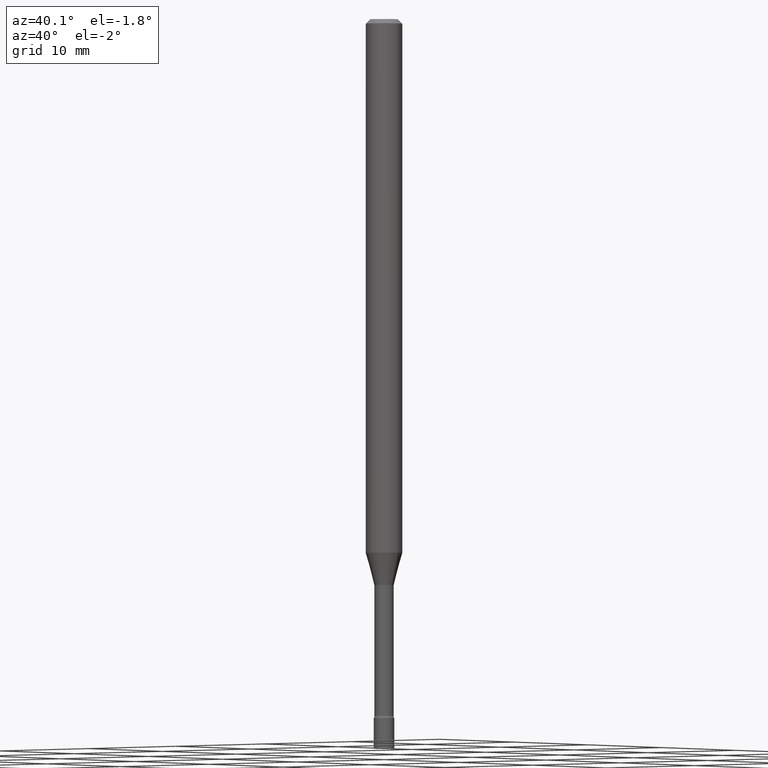
[diagram: clean part render]
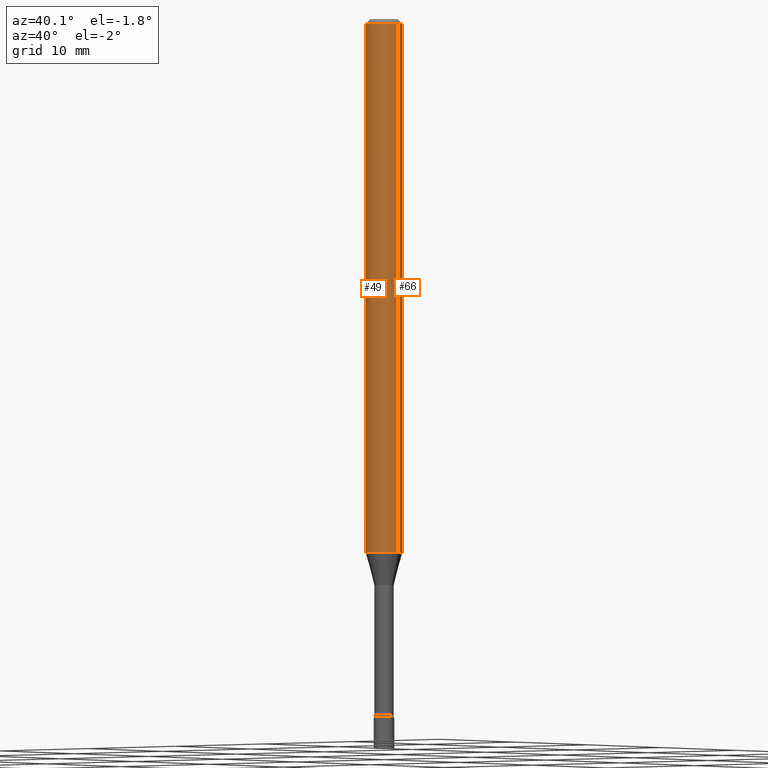
[diagram: same view with one multi-face feature highlighted, each face labeled with its STEP entity id]
A machine part, auxiliary view. The highlighted faces form ONE feature: a constant-radius fillet chain: 2 tangent blend faces with common blend radius 1.5875 mm. The faces share edges in the B-rep.
Their STEP definitions:
[1] entity #66 (Cylinder):
#2 = VERTEX_POINT ( 'NONE', #297 ) ;
#15 = DIRECTION ( 'NONE',  ( -2.445468806185136597E-29, 3.491481338843145583E-15, 1.000000000000000000 ) ) ;
#45 = VECTOR ( 'NONE', #466, 39.37007874015748143 ) ;
#51 = CIRCLE ( 'NONE', #187, 0.06250000000000000000 ) ;
#60 = ORIENTED_EDGE ( 'NONE', *, *, #129, .F. ) ;
#66 = ADVANCED_FACE ( 'NONE', ( #251 ), #401, .T. ) ;
#82 = ORIENTED_EDGE ( 'NONE', *, *, #290, .F. ) ;
#88 = CARTESIAN_POINT ( 'NONE',  ( 0.000000000000000000, 0.000000000000000000, 0.000000000000000000 ) ) ;
#111 = EDGE_CURVE ( 'NONE', #501, #2, #51, .T. ) ;
#116 = EDGE_LOOP ( 'NONE', ( #424, #465, #82, #60 ) ) ;
#129 = EDGE_CURVE ( 'NONE', #501, #245, #300, .T. ) ;
#177 = AXIS2_PLACEMENT_3D ( 'NONE', #314, #433, #235 ) ;
#187 = AXIS2_PLACEMENT_3D ( 'NONE', #411, #430, #191 ) ;
#191 = DIRECTION ( 'NONE',  ( 1.000000000000000000, -6.982962677686262766E-15, 0.000000000000000000 ) ) ;
#219 = VECTOR ( 'NONE', #414, 39.37007874015748143 ) ;
#235 = DIRECTION ( 'NONE',  ( 1.000000000000000000, -6.982962677686266711E-15, 0.000000000000000000 ) ) ;
#245 = VERTEX_POINT ( 'NONE', #393 ) ;
#251 = FACE_OUTER_BOUND ( 'NONE', #116, .T. ) ;
#289 = CARTESIAN_POINT ( 'NONE',  ( -0.06250000000000000000, -2.775984089765543291E-15, -0.01500000000000003067 ) ) ;
#290 = EDGE_CURVE ( 'NONE', #245, #319, #394, .T. ) ;
#297 = CARTESIAN_POINT ( 'NONE',  ( -0.06250000000000000000, -5.943685169298501725E-15, -1.829531296095961546 ) ) ;
#300 = LINE ( 'NONE', #509, #45 ) ;
#305 = CARTESIAN_POINT ( 'NONE',  ( -0.06250000000000000000, 4.440892098500626162E-16, -3.074334431409316114E-30 ) ) ;
#314 = CARTESIAN_POINT ( 'NONE',  ( 3.668203209277712094E-31, -5.237222008264728876E-17, -0.01500000000000003067 ) ) ;
#319 = VERTEX_POINT ( 'NONE', #289 ) ;
#328 = AXIS2_PLACEMENT_3D ( 'NONE', #88, #15, #368 ) ;
#345 = EDGE_CURVE ( 'NONE', #2, #319, #486, .T. ) ;
#368 = DIRECTION ( 'NONE',  ( 1.000000000000000000, -6.982962677686266711E-15, 4.876176775795935793E-29 ) ) ;
#383 = CARTESIAN_POINT ( 'NONE',  ( 0.06250000000000000000, -6.824209546503955222E-15, -1.829531296095961546 ) ) ;
#393 = CARTESIAN_POINT ( 'NONE',  ( 0.06250000000000000000, -4.888073874380389458E-16, -0.01500000000000003067 ) ) ;
#394 = CIRCLE ( 'NONE', #177, 0.06250000000000000000 ) ;
#401 = CYLINDRICAL_SURFACE ( 'NONE', #328, 0.06250000000000000000 ) ;
#411 = CARTESIAN_POINT ( 'NONE',  ( 4.474061714542137038E-29, -6.387774379148563553E-15, -1.829531296095961546 ) ) ;
#414 = DIRECTION ( 'NONE',  ( -2.445468806185136877E-29, 3.491481338843145188E-15, 1.000000000000000000 ) ) ;
#424 = ORIENTED_EDGE ( 'NONE', *, *, #111, .T. ) ;
#430 = DIRECTION ( 'NONE',  ( -2.445468806185136597E-29, 3.491481338843145583E-15, 1.000000000000000000 ) ) ;
#433 = DIRECTION ( 'NONE',  ( -2.445468806185136597E-29, 3.491481338843145583E-15, 1.000000000000000000 ) ) ;
#465 = ORIENTED_EDGE ( 'NONE', *, *, #345, .T. ) ;
#466 = DIRECTION ( 'NONE',  ( -2.445468806185136877E-29, 3.491481338843145188E-15, 1.000000000000000000 ) ) ;
#486 = LINE ( 'NONE', #305, #219 ) ;
#501 = VERTEX_POINT ( 'NONE', #383 ) ;
#509 = CARTESIAN_POINT ( 'NONE',  ( 0.06250000000000000000, -4.364351673553916694E-16, 3.047610484872459871E-30 ) ) ;
[2] entity #49 (Cylinder):
#2 = VERTEX_POINT ( 'NONE', #297 ) ;
#3 = DIRECTION ( 'NONE',  ( -2.445468806185136597E-29, 3.491481338843145583E-15, 1.000000000000000000 ) ) ;
#4 = CIRCLE ( 'NONE', #302, 0.06250000000000000000 ) ;
#42 = ORIENTED_EDGE ( 'NONE', *, *, #212, .T. ) ;
#45 = VECTOR ( 'NONE', #466, 39.37007874015748143 ) ;
#48 = DIRECTION ( 'NONE',  ( 1.000000000000000000, -6.982962677686266711E-15, 4.876176775795935793E-29 ) ) ;
#49 = ADVANCED_FACE ( 'NONE', ( #207 ), #214, .T. ) ;
#61 = CARTESIAN_POINT ( 'NONE',  ( 4.474061714542137038E-29, -6.387774379148563553E-15, -1.829531296095961546 ) ) ;
#78 = EDGE_LOOP ( 'NONE', ( #137, #42, #156, #493 ) ) ;
#94 = DIRECTION ( 'NONE',  ( -2.445468806185136597E-29, 3.491481338843145583E-15, 1.000000000000000000 ) ) ;
#117 = DIRECTION ( 'NONE',  ( 1.000000000000000000, -6.982962677686262766E-15, 0.000000000000000000 ) ) ;
#129 = EDGE_CURVE ( 'NONE', #501, #245, #300, .T. ) ;
#137 = ORIENTED_EDGE ( 'NONE', *, *, #345, .F. ) ;
#156 = ORIENTED_EDGE ( 'NONE', *, *, #129, .T. ) ;
#207 = FACE_OUTER_BOUND ( 'NONE', #78, .T. ) ;
#212 = EDGE_CURVE ( 'NONE', #2, #501, #4, .T. ) ;
#214 = CYLINDRICAL_SURFACE ( 'NONE', #478, 0.06250000000000000000 ) ;
#219 = VECTOR ( 'NONE', #414, 39.37007874015748143 ) ;
#245 = VERTEX_POINT ( 'NONE', #393 ) ;
#273 = EDGE_CURVE ( 'NONE', #319, #245, #357, .T. ) ;
#289 = CARTESIAN_POINT ( 'NONE',  ( -0.06250000000000000000, -2.775984089765543291E-15, -0.01500000000000003067 ) ) ;
#297 = CARTESIAN_POINT ( 'NONE',  ( -0.06250000000000000000, -5.943685169298501725E-15, -1.829531296095961546 ) ) ;
#300 = LINE ( 'NONE', #509, #45 ) ;
#302 = AXIS2_PLACEMENT_3D ( 'NONE', #61, #3, #117 ) ;
#305 = CARTESIAN_POINT ( 'NONE',  ( -0.06250000000000000000, 4.440892098500626162E-16, -3.074334431409316114E-30 ) ) ;
#319 = VERTEX_POINT ( 'NONE', #289 ) ;
#345 = EDGE_CURVE ( 'NONE', #2, #319, #486, .T. ) ;
#354 = DIRECTION ( 'NONE',  ( 1.000000000000000000, -6.982962677686266711E-15, 0.000000000000000000 ) ) ;
#357 = CIRCLE ( 'NONE', #428, 0.06250000000000000000 ) ;
#383 = CARTESIAN_POINT ( 'NONE',  ( 0.06250000000000000000, -6.824209546503955222E-15, -1.829531296095961546 ) ) ;
#393 = CARTESIAN_POINT ( 'NONE',  ( 0.06250000000000000000, -4.888073874380389458E-16, -0.01500000000000003067 ) ) ;
#414 = DIRECTION ( 'NONE',  ( -2.445468806185136877E-29, 3.491481338843145188E-15, 1.000000000000000000 ) ) ;
#428 = AXIS2_PLACEMENT_3D ( 'NONE', #484, #444, #354 ) ;
#444 = DIRECTION ( 'NONE',  ( -2.445468806185136597E-29, 3.491481338843145583E-15, 1.000000000000000000 ) ) ;
#466 = DIRECTION ( 'NONE',  ( -2.445468806185136877E-29, 3.491481338843145188E-15, 1.000000000000000000 ) ) ;
#478 = AXIS2_PLACEMENT_3D ( 'NONE', #496, #94, #48 ) ;
#484 = CARTESIAN_POINT ( 'NONE',  ( 3.668203209277712094E-31, -5.237222008264728876E-17, -0.01500000000000003067 ) ) ;
#486 = LINE ( 'NONE', #305, #219 ) ;
#493 = ORIENTED_EDGE ( 'NONE', *, *, #273, .F. ) ;
#496 = CARTESIAN_POINT ( 'NONE',  ( 0.000000000000000000, 0.000000000000000000, 0.000000000000000000 ) ) ;
#501 = VERTEX_POINT ( 'NONE', #383 ) ;
#509 = CARTESIAN_POINT ( 'NONE',  ( 0.06250000000000000000, -4.364351673553916694E-16, 3.047610484872459871E-30 ) ) ;